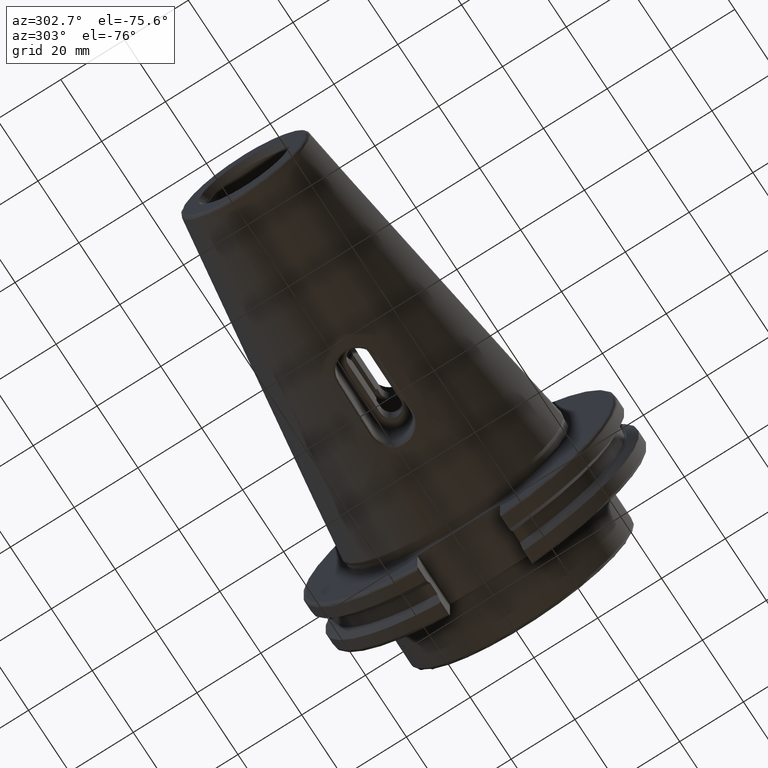
[diagram: clean part render]
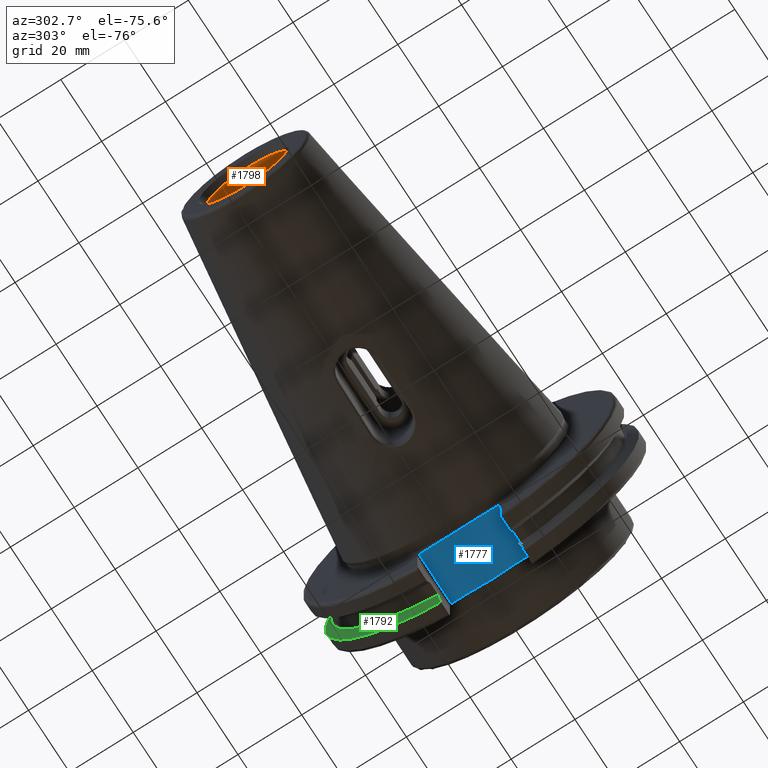
[diagram: same view with three faces highlighted in distinct colors, each labeled with its STEP entity id]
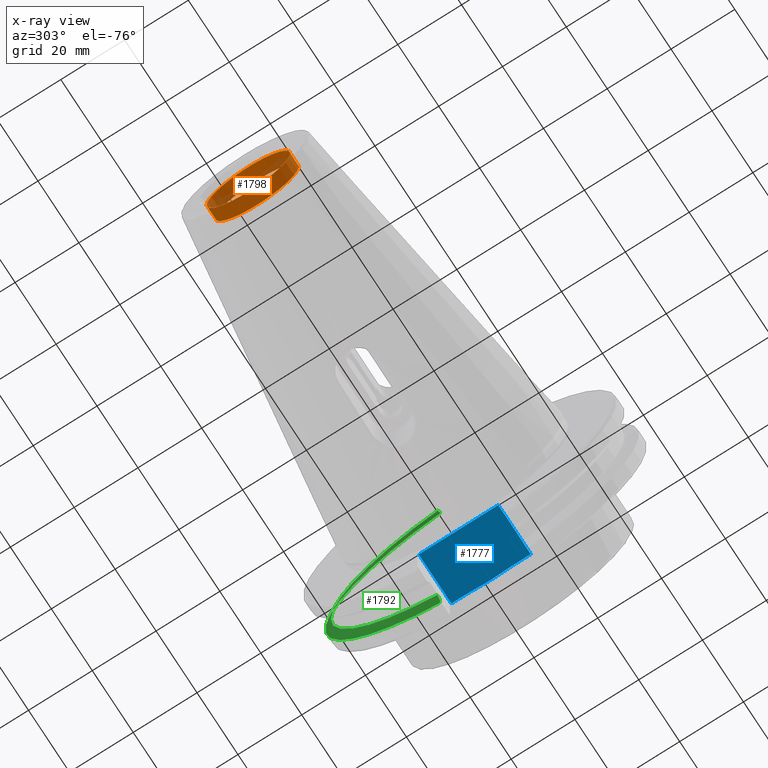
[diagram: x-ray of the same camera — body ghosted, the three highlighted faces saturated]
A machine part, auxiliary view with three faces highlighted in distinct colors.
The next image is the same camera in x-ray (body ghosted, the three faces saturated) — at least one of them is partly hidden behind the body in this view.
Their STEP definitions:

[orange] entity #1798 — the highlighted cylindrical surface (bore or boss wall) has radius 13.1 mm, axis along (1, 0, 0).
#139=CYLINDRICAL_SURFACE('',#1967,13.1);
#285=FACE_OUTER_BOUND('',#396,.T.);
#396=EDGE_LOOP('',(#1658,#1659,#1660,#1661));
#523=LINE('',#3798,#645);
#645=VECTOR('',#2379,13.1);
#709=CIRCLE('',#1966,13.1);
#710=CIRCLE('',#1968,13.1);
#888=VERTEX_POINT('',#3794);
#889=VERTEX_POINT('',#3797);
#1149=EDGE_CURVE('',#888,#888,#709,.T.);
#1150=EDGE_CURVE('',#888,#889,#523,.T.);
#1151=EDGE_CURVE('',#889,#889,#710,.T.);
#1658=ORIENTED_EDGE('',*,*,#1149,.T.);
#1659=ORIENTED_EDGE('',*,*,#1150,.T.);
#1660=ORIENTED_EDGE('',*,*,#1151,.F.);
#1661=ORIENTED_EDGE('',*,*,#1150,.F.);
#1798=ADVANCED_FACE('',(#285),#139,.F.);
#1966=AXIS2_PLACEMENT_3D('',#3795,#2375,#2376);
#1967=AXIS2_PLACEMENT_3D('',#3796,#2377,#2378);
#1968=AXIS2_PLACEMENT_3D('',#3799,#2380,#2381);
#2375=DIRECTION('center_axis',(1.,0.,0.));
#2376=DIRECTION('ref_axis',(0.,0.,-1.));
#2377=DIRECTION('center_axis',(1.,0.,0.));
#2378=DIRECTION('ref_axis',(0.,1.,0.));
#2379=DIRECTION('',(-1.,0.,0.));
#2380=DIRECTION('center_axis',(1.,0.,0.));
#2381=DIRECTION('ref_axis',(0.,0.,-1.));
#3794=CARTESIAN_POINT('',(-95.25,-13.1,-1.60428730688303E-15));
#3795=CARTESIAN_POINT('Origin',(-95.25,0.,0.));
#3796=CARTESIAN_POINT('Origin',(-97.396594833006,0.,0.));
#3797=CARTESIAN_POINT('',(-99.5431896660119,-13.1,-1.60428730688303E-15));
#3798=CARTESIAN_POINT('',(-97.396594833006,-13.1,-1.60428730688303E-15));
#3799=CARTESIAN_POINT('Origin',(-99.5431896660119,0.,0.));

[blue] entity #1777 — the highlighted planar face has unit normal (0, 0, 1).
#51=B_SPLINE_CURVE_WITH_KNOTS('',3,(#2436,#2437,#2438,#2439,#2440,#2441),
 .UNSPECIFIED.,.F.,.F.,(4,2,4),(2.09820602433263,2.5247494364482,2.72121070581847),
 .UNSPECIFIED.);
#52=B_SPLINE_CURVE_WITH_KNOTS('',3,(#2444,#2445,#2446,#2447,#2448,#2449),
 .UNSPECIFIED.,.F.,.F.,(4,2,4),(1.47520134284679,1.67166261221706,2.09820602433263),
 .UNSPECIFIED.);
#178=PLANE('',#1936);
#264=FACE_OUTER_BOUND('',#373,.T.);
#373=EDGE_LOOP('',(#1561,#1562,#1563,#1564,#1565,#1566,#1567));
#470=LINE('',#3456,#592);
#482=LINE('',#3537,#604);
#491=LINE('',#3555,#613);
#507=LINE('',#3717,#629);
#508=LINE('',#3719,#630);
#592=VECTOR('',#2206,10.);
#604=VECTOR('',#2234,10.);
#613=VECTOR('',#2245,10.);
#629=VECTOR('',#2299,10.);
#630=VECTOR('',#2302,10.);
#723=VERTEX_POINT('',#2433);
#724=VERTEX_POINT('',#2435);
#725=VERTEX_POINT('',#2442);
#819=VERTEX_POINT('',#3453);
#820=VERTEX_POINT('',#3455);
#838=VERTEX_POINT('',#3536);
#846=VERTEX_POINT('',#3553);
#903=EDGE_CURVE('',#724,#723,#51,.F.);
#905=EDGE_CURVE('',#723,#725,#52,.F.);
#1044=EDGE_CURVE('',#819,#820,#470,.T.);
#1067=EDGE_CURVE('',#724,#838,#482,.T.);
#1077=EDGE_CURVE('',#846,#725,#491,.T.);
#1118=EDGE_CURVE('',#838,#819,#507,.T.);
#1119=EDGE_CURVE('',#820,#846,#508,.T.);
#1561=ORIENTED_EDGE('',*,*,#1118,.F.);
#1562=ORIENTED_EDGE('',*,*,#1067,.F.);
#1563=ORIENTED_EDGE('',*,*,#903,.T.);
#1564=ORIENTED_EDGE('',*,*,#905,.T.);
#1565=ORIENTED_EDGE('',*,*,#1077,.F.);
#1566=ORIENTED_EDGE('',*,*,#1119,.F.);
#1567=ORIENTED_EDGE('',*,*,#1044,.F.);
#1777=ADVANCED_FACE('',(#264),#178,.F.);
#1936=AXIS2_PLACEMENT_3D('',#3718,#2300,#2301);
#2206=DIRECTION('',(0.,-1.,0.));
#2234=DIRECTION('',(0.,1.,0.));
#2245=DIRECTION('',(0.,1.,0.));
#2299=DIRECTION('',(-1.,2.63163976207444E-16,0.));
#2300=DIRECTION('center_axis',(0.,0.,1.));
#2301=DIRECTION('ref_axis',(1.,0.,0.));
#2302=DIRECTION('',(1.,2.63163976207445E-16,0.));
#2433=CARTESIAN_POINT('',(19.2646090145666,-2.50881368973018E-15,-35.306));
#2435=CARTESIAN_POINT('',(19.05,6.64017989214148,-35.306));
#2436=CARTESIAN_POINT('Ctrl Pts',(19.2646090145666,-6.93889390390723E-16,
-35.306));
#2437=CARTESIAN_POINT('Ctrl Pts',(19.2646090145666,1.42181137371857,-35.306));
#2438=CARTESIAN_POINT('Ctrl Pts',(19.1680602893707,3.12525108863957,-35.306));
#2439=CARTESIAN_POINT('Ctrl Pts',(19.0762097808881,5.19990111728298,-35.306));
#2440=CARTESIAN_POINT('Ctrl Pts',(19.05,5.98530899424058,-35.306));
#2441=CARTESIAN_POINT('Ctrl Pts',(19.05,6.64017989214148,-35.306));
#2442=CARTESIAN_POINT('',(19.05,-6.64017989214148,-35.306));
#2444=CARTESIAN_POINT('Ctrl Pts',(19.05,-6.64017989214148,-35.306));
#2445=CARTESIAN_POINT('Ctrl Pts',(19.05,-5.98530899424058,-35.306));
#2446=CARTESIAN_POINT('Ctrl Pts',(19.0762097808881,-5.19990111728298,-35.306));
#2447=CARTESIAN_POINT('Ctrl Pts',(19.1680602893707,-3.12525108863957,-35.306));
#2448=CARTESIAN_POINT('Ctrl Pts',(19.2646090145666,-1.42181137371857,-35.306));
#2449=CARTESIAN_POINT('Ctrl Pts',(19.2646090145666,5.55111512312578E-16,
-35.306));
#3453=CARTESIAN_POINT('',(3.175,12.45,-35.306));
#3455=CARTESIAN_POINT('',(3.175,-12.45,-35.306));
#3456=CARTESIAN_POINT('',(3.175,24.60625,-35.306));
#3536=CARTESIAN_POINT('',(19.05,12.45,-35.306));
#3537=CARTESIAN_POINT('',(19.05,-3.33066907387547E-15,-35.306));
#3553=CARTESIAN_POINT('',(19.05,-12.45,-35.306));
#3555=CARTESIAN_POINT('',(19.05,-3.33066907387547E-15,-35.306));
#3717=CARTESIAN_POINT('',(10.63125,12.45,-35.306));
#3718=CARTESIAN_POINT('Origin',(18.0875,-6.66133814775094E-15,-35.306));
#3719=CARTESIAN_POINT('',(19.06875,-12.45,-35.306));

[green] entity #1792 — the highlighted conical surface has half-angle 60 deg.
#19=(
BOUNDED_CURVE()
B_SPLINE_CURVE(2,(#3505,#3506,#3507),.UNSPECIFIED.,.F.,.F.)
B_SPLINE_CURVE_WITH_KNOTS((3,3),(0.325260944932521,0.390084992222202),
 .UNSPECIFIED.)
CURVE()
GEOMETRIC_REPRESENTATION_ITEM()
RATIONAL_B_SPLINE_CURVE((1.00019140645994,1.00011477674864,1.))
REPRESENTATION_ITEM('')
);
#21=(
BOUNDED_CURVE()
B_SPLINE_CURVE(2,(#3532,#3533,#3534),.UNSPECIFIED.,.F.,.F.)
B_SPLINE_CURVE_WITH_KNOTS((3,3),(0.0558332664532001,0.331657177124504),
 .UNSPECIFIED.)
CURVE()
GEOMETRIC_REPRESENTATION_ITEM()
RATIONAL_B_SPLINE_CURVE((1.00012873636632,1.00038235574022,1.))
REPRESENTATION_ITEM('')
);
#29=(
BOUNDED_CURVE()
B_SPLINE_CURVE(2,(#3730,#3731,#3732),.UNSPECIFIED.,.F.,.F.)
B_SPLINE_CURVE_WITH_KNOTS((3,3),(0.,0.275823910671402),.UNSPECIFIED.)
CURVE()
GEOMETRIC_REPRESENTATION_ITEM()
RATIONAL_B_SPLINE_CURVE((1.,1.00038235574129,1.00012873636668))
REPRESENTATION_ITEM('')
);
#33=(
BOUNDED_CURVE()
B_SPLINE_CURVE(2,(#3761,#3762,#3763),.UNSPECIFIED.,.F.,.F.)
B_SPLINE_CURVE_WITH_KNOTS((3,3),(0.,0.0648240472897064),.UNSPECIFIED.)
CURVE()
GEOMETRIC_REPRESENTATION_ITEM()
RATIONAL_B_SPLINE_CURVE((1.,1.00011477674844,1.00019140645961))
REPRESENTATION_ITEM('')
);
#279=FACE_OUTER_BOUND('',#388,.T.);
#388=EDGE_LOOP('',(#1633,#1634,#1635,#1636,#1637,#1638));
#701=CIRCLE('',#1947,49.2125);
#706=CIRCLE('',#1958,46.4219772964944);
#829=VERTEX_POINT('',#3502);
#830=VERTEX_POINT('',#3504);
#837=VERTEX_POINT('',#3530);
#875=VERTEX_POINT('',#3727);
#876=VERTEX_POINT('',#3729);
#883=VERTEX_POINT('',#3759);
#1056=EDGE_CURVE('',#829,#830,#19,.T.);
#1066=EDGE_CURVE('',#829,#837,#21,.T.);
#1124=EDGE_CURVE('',#876,#875,#29,.T.);
#1136=EDGE_CURVE('',#883,#875,#33,.T.);
#1137=EDGE_CURVE('',#830,#883,#701,.T.);
#1146=EDGE_CURVE('',#837,#876,#706,.T.);
#1633=ORIENTED_EDGE('',*,*,#1056,.F.);
#1634=ORIENTED_EDGE('',*,*,#1066,.T.);
#1635=ORIENTED_EDGE('',*,*,#1146,.T.);
#1636=ORIENTED_EDGE('',*,*,#1124,.T.);
#1637=ORIENTED_EDGE('',*,*,#1136,.F.);
#1638=ORIENTED_EDGE('',*,*,#1137,.F.);
#1701=CONICAL_SURFACE('',#1957,47.8172386482472,1.0471975511966);
#1792=ADVANCED_FACE('',(#279),#1701,.T.);
#1947=AXIS2_PLACEMENT_3D('',#3765,#2334,#2335);
#1957=AXIS2_PLACEMENT_3D('',#3785,#2357,#2358);
#1958=AXIS2_PLACEMENT_3D('',#3786,#2359,#2360);
#2334=DIRECTION('center_axis',(1.,0.,0.));
#2335=DIRECTION('ref_axis',(0.,0.,-1.));
#2357=DIRECTION('center_axis',(1.,0.,0.));
#2358=DIRECTION('ref_axis',(0.,1.,0.));
#2359=DIRECTION('center_axis',(1.,0.,0.));
#2360=DIRECTION('ref_axis',(0.,0.,-1.));
#3502=CARTESIAN_POINT('',(14.3818103943757,12.95,-46.9780755322918));
#3504=CARTESIAN_POINT('',(14.6602090340487,13.4317035994433,-47.3440544806494));
#3505=CARTESIAN_POINT('Ctrl Pts',(14.3818103943757,12.95,-46.9780755322918));
#3506=CARTESIAN_POINT('Ctrl Pts',(14.5199310333617,13.1896660169965,-47.1601640966264));
#3507=CARTESIAN_POINT('Ctrl Pts',(14.6602090340487,13.4317035994433,-47.3440544806494));
#3530=CARTESIAN_POINT('',(13.0491,12.95,-44.5791147973605));
#3532=CARTESIAN_POINT('Ctrl Pts',(14.3818103943757,12.95,-46.9780755322918));
#3533=CARTESIAN_POINT('Ctrl Pts',(13.6979955094851,12.95,-45.7494966802933));
#3534=CARTESIAN_POINT('Ctrl Pts',(13.0491,12.95,-44.5791147973604));
#3727=CARTESIAN_POINT('',(14.3818103943757,12.95,46.9780755322918));
#3729=CARTESIAN_POINT('',(13.0491,12.95,44.5791147973604));
#3730=CARTESIAN_POINT('Ctrl Pts',(13.0491,12.95,44.5791147973604));
#3731=CARTESIAN_POINT('Ctrl Pts',(13.6979955094846,12.95,45.7494966802924));
#3732=CARTESIAN_POINT('Ctrl Pts',(14.3818103943757,12.95,46.9780755322918));
#3759=CARTESIAN_POINT('',(14.6602090340487,13.4317035994433,47.3440544806494));
#3761=CARTESIAN_POINT('Ctrl Pts',(14.6602090340487,13.4317035994433,47.3440544806494));
#3762=CARTESIAN_POINT('Ctrl Pts',(14.5199310333618,13.1896660169966,47.1601640966264));
#3763=CARTESIAN_POINT('Ctrl Pts',(14.3818103943757,12.95,46.9780755322918));
#3765=CARTESIAN_POINT('Origin',(14.6602090340487,0.,0.));
#3785=CARTESIAN_POINT('Origin',(13.8546545170244,0.,0.));
#3786=CARTESIAN_POINT('Origin',(13.0491,0.,0.));